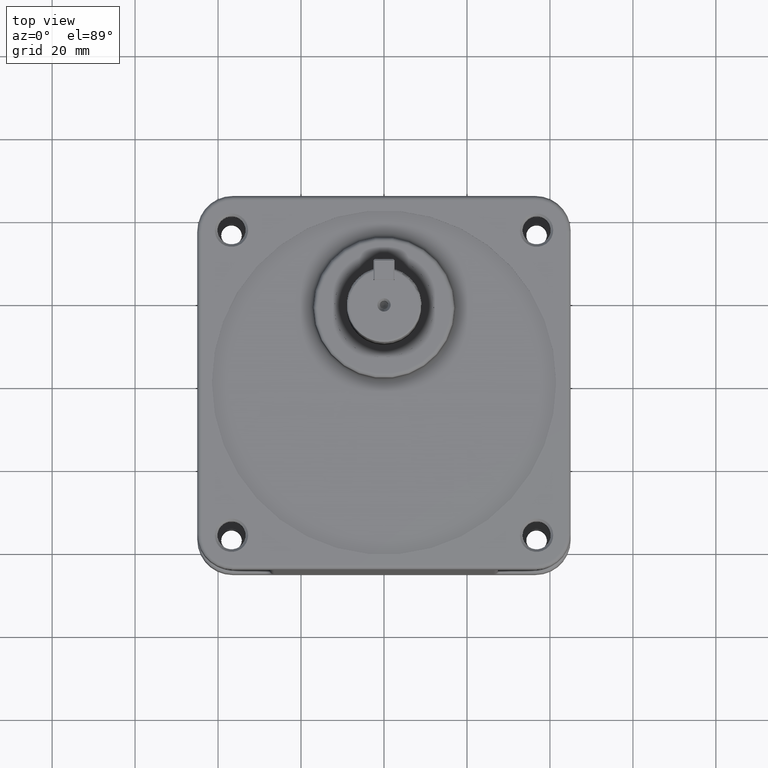
[diagram: clean part render]
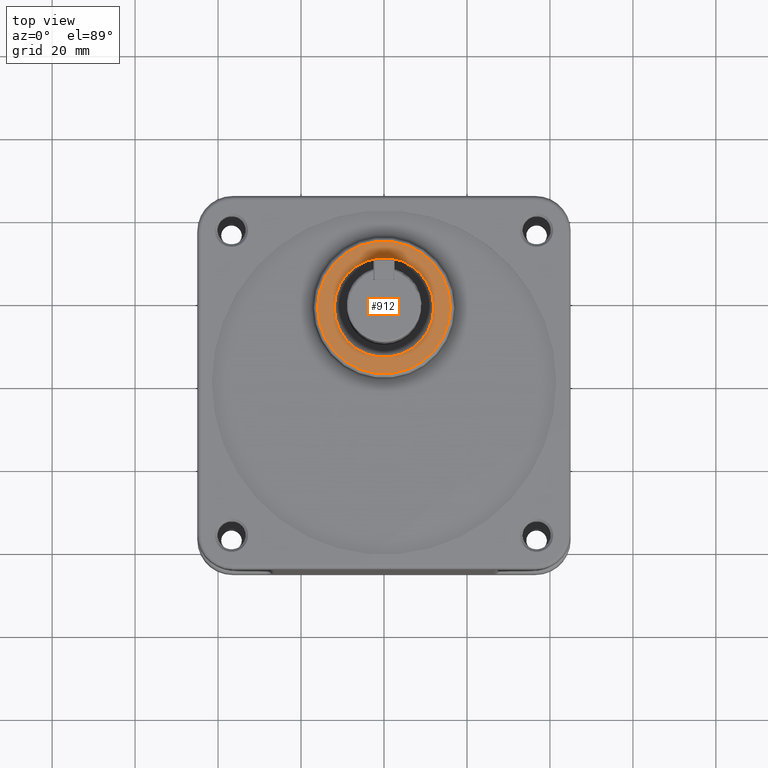
[diagram: same view with one face highlighted and labeled with its STEP entity id]
A machine part, top view. The second image highlights one B-rep face of the part: STEP entity #912.
In plain terms, the highlighted planar face has unit normal (-0, 0, 1).
Its self-contained STEP definition (entity closure, byte-faithful):
#339 = ORIENTED_EDGE ( 'NONE', *, *, #3015, .F. ) ;
#340 = ORIENTED_EDGE ( 'NONE', *, *, #866, .F. ) ;
#341 = ORIENTED_EDGE ( 'NONE', *, *, #513, .T. ) ;
#505 = EDGE_LOOP ( 'NONE', ( #339, #340 ) ) ;
#513 = EDGE_CURVE ( 'NONE', #3838, #3844, #5072, .T. ) ;
#866 = EDGE_CURVE ( 'NONE', #3050, #3025, #5668, .T. ) ;
#890 = EDGE_LOOP ( 'NONE', ( #909, #341 ) ) ;
#909 = ORIENTED_EDGE ( 'NONE', *, *, #3824, .T. ) ;
#912 = ADVANCED_FACE ( 'NONE', ( #5772, #5725 ), #5771, .T. ) ;
#1358 = DIRECTION ( 'NONE',  ( -1.000000000000000000, 0.0000000000000000000, 0.0000000000000000000 ) ) ;
#1359 = DIRECTION ( 'NONE',  ( 0.0000000000000000000, 0.0000000000000000000, -1.000000000000000000 ) ) ;
#1360 = CARTESIAN_POINT ( 'NONE',  ( 3.785724844614218800E-015, 17.99999999999959100, -7.000000000000000000 ) ) ;
#1361 = AXIS2_PLACEMENT_3D ( 'NONE', #1360, #1359, #1358 ) ;
#1362 = CIRCLE ( 'NONE', #1361, 16.00000000000000000 ) ;
#1392 = CARTESIAN_POINT ( 'NONE',  ( -15.99999999999999600, 17.99999999999959100, -7.000000000000000000 ) ) ;
#1396 = CARTESIAN_POINT ( 'NONE',  ( 16.00000000000000400, 17.99999999999959500, -7.000000000000000000 ) ) ;
#3015 = EDGE_CURVE ( 'NONE', #3025, #3050, #5931, .T. ) ;
#3025 = VERTEX_POINT ( 'NONE', #5979 ) ;
#3050 = VERTEX_POINT ( 'NONE', #5989 ) ;
#3824 = EDGE_CURVE ( 'NONE', #3844, #3838, #1362, .T. ) ;
#3838 = VERTEX_POINT ( 'NONE', #1396 ) ;
#3844 = VERTEX_POINT ( 'NONE', #1392 ) ;
#5063 = CARTESIAN_POINT ( 'NONE',  ( 3.785724844614218800E-015, 17.99999999999959100, -7.000000000000000000 ) ) ;
#5067 = AXIS2_PLACEMENT_3D ( 'NONE', #5063, #5123, #5122 ) ;
#5072 = CIRCLE ( 'NONE', #5067, 16.00000000000000000 ) ;
#5122 = DIRECTION ( 'NONE',  ( -1.000000000000000000, 0.0000000000000000000, 0.0000000000000000000 ) ) ;
#5123 = DIRECTION ( 'NONE',  ( 0.0000000000000000000, 0.0000000000000000000, -1.000000000000000000 ) ) ;
#5652 = DIRECTION ( 'NONE',  ( -1.000000000000000000, 0.0000000000000000000, 0.0000000000000000000 ) ) ;
#5653 = DIRECTION ( 'NONE',  ( 0.0000000000000000000, 0.0000000000000000000, -1.000000000000000000 ) ) ;
#5654 = CARTESIAN_POINT ( 'NONE',  ( 3.785724844614218800E-015, 17.99999999999959100, -7.000000000000000000 ) ) ;
#5659 = AXIS2_PLACEMENT_3D ( 'NONE', #5654, #5653, #5652 ) ;
#5668 = CIRCLE ( 'NONE', #5659, 12.00000000000000000 ) ;
#5717 = AXIS2_PLACEMENT_3D ( 'NONE', #5773, #5774, #5763 ) ;
#5725 = FACE_BOUND ( 'NONE', #505, .T. ) ;
#5763 = DIRECTION ( 'NONE',  ( -1.000000000000000000, 0.0000000000000000000, -0.0000000000000000000 ) ) ;
#5771 = PLANE ( 'NONE',  #5717 ) ;
#5772 = FACE_OUTER_BOUND ( 'NONE', #890, .T. ) ;
#5773 = CARTESIAN_POINT ( 'NONE',  ( 3.785724844614218800E-015, 17.99999999999959100, -7.000000000000000000 ) ) ;
#5774 = DIRECTION ( 'NONE',  ( 0.0000000000000000000, 0.0000000000000000000, -1.000000000000000000 ) ) ;
#5926 = DIRECTION ( 'NONE',  ( -1.000000000000000000, 0.0000000000000000000, 0.0000000000000000000 ) ) ;
#5927 = DIRECTION ( 'NONE',  ( 0.0000000000000000000, 0.0000000000000000000, -1.000000000000000000 ) ) ;
#5928 = CARTESIAN_POINT ( 'NONE',  ( 3.785724844614218800E-015, 17.99999999999959100, -7.000000000000000000 ) ) ;
#5929 = AXIS2_PLACEMENT_3D ( 'NONE', #5928, #5927, #5926 ) ;
#5931 = CIRCLE ( 'NONE', #5929, 12.00000000000000000 ) ;
#5979 = CARTESIAN_POINT ( 'NONE',  ( 12.00000000000000400, 17.99999999999959100, -7.000000000000000000 ) ) ;
#5989 = CARTESIAN_POINT ( 'NONE',  ( -11.99999999999999600, 17.99999999999959100, -7.000000000000000000 ) ) ;